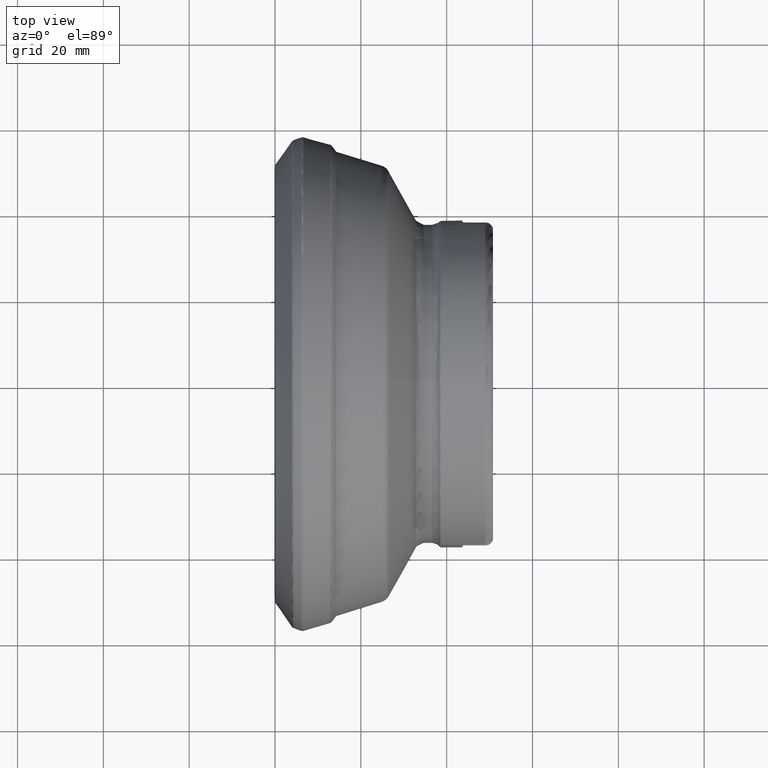
[diagram: clean part render]
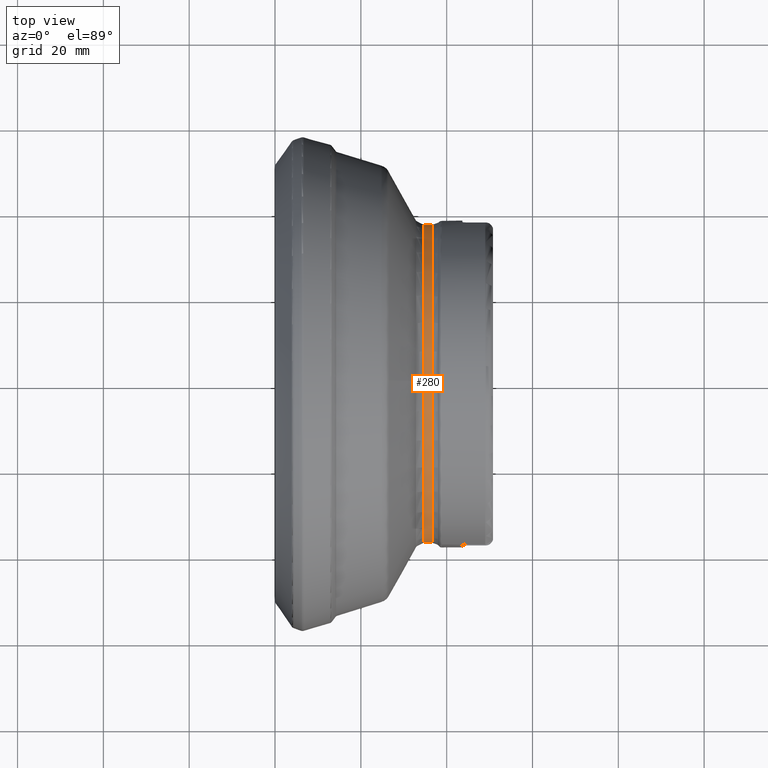
[diagram: same view with one face highlighted and labeled with its STEP entity id]
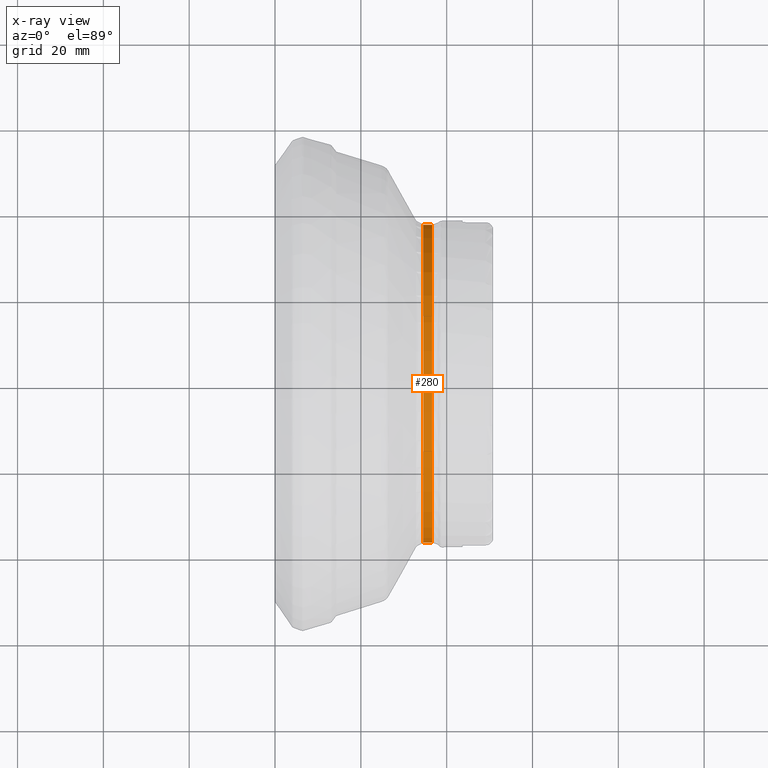
[diagram: x-ray of the same camera — body ghosted, the highlighted face saturated]
A machine part, top view. The second image highlights one B-rep face of the part: STEP entity #280.
The next image is the same camera in x-ray: the body ghosted, the highlighted face saturated — about 0% of this face is hidden behind the body in this view.
In plain terms, the highlighted cylindrical surface (bore or boss wall) has radius 37.1 mm, axis along (-1, 0, 0).
Its self-contained STEP definition (entity closure, byte-faithful):
#110=CYLINDRICAL_SURFACE('',#1163,37.1);
#280=ADVANCED_FACE('',(#457,#458),#110,.T.);
#457=FACE_BOUND('',#567,.T.);
#458=FACE_BOUND('',#568,.T.);
#567=EDGE_LOOP('',(#764));
#568=EDGE_LOOP('',(#765));
#764=ORIENTED_EDGE('',*,*,#955,.T.);
#765=ORIENTED_EDGE('',*,*,#952,.T.);
#858=VERTEX_POINT('',#1714);
#861=VERTEX_POINT('',#1721);
#952=EDGE_CURVE('',#858,#858,#1044,.T.);
#955=EDGE_CURVE('',#861,#861,#1047,.T.);
#1044=CIRCLE('',#1112,37.1);
#1047=CIRCLE('',#1116,37.1);
#1112=AXIS2_PLACEMENT_3D('',#1713,#1286,#1287);
#1116=AXIS2_PLACEMENT_3D('',#1720,#1294,#1295);
#1163=AXIS2_PLACEMENT_3D('',#2014,#1404,#1405);
#1286=DIRECTION('',(1.,0.,0.));
#1287=DIRECTION('',(0.,0.,1.));
#1294=DIRECTION('',(-1.,0.,0.));
#1295=DIRECTION('',(0.,0.,1.));
#1404=DIRECTION('',(-1.,0.,0.));
#1405=DIRECTION('',(0.,0.,1.));
#1713=CARTESIAN_POINT('',(34.6095885626886,0.,0.));
#1714=CARTESIAN_POINT('',(34.6095885626886,0.,37.1));
#1720=CARTESIAN_POINT('',(36.6076026409837,0.,0.));
#1721=CARTESIAN_POINT('',(36.6076026409837,0.,37.1));
#2014=CARTESIAN_POINT('',(5.,0.,0.));